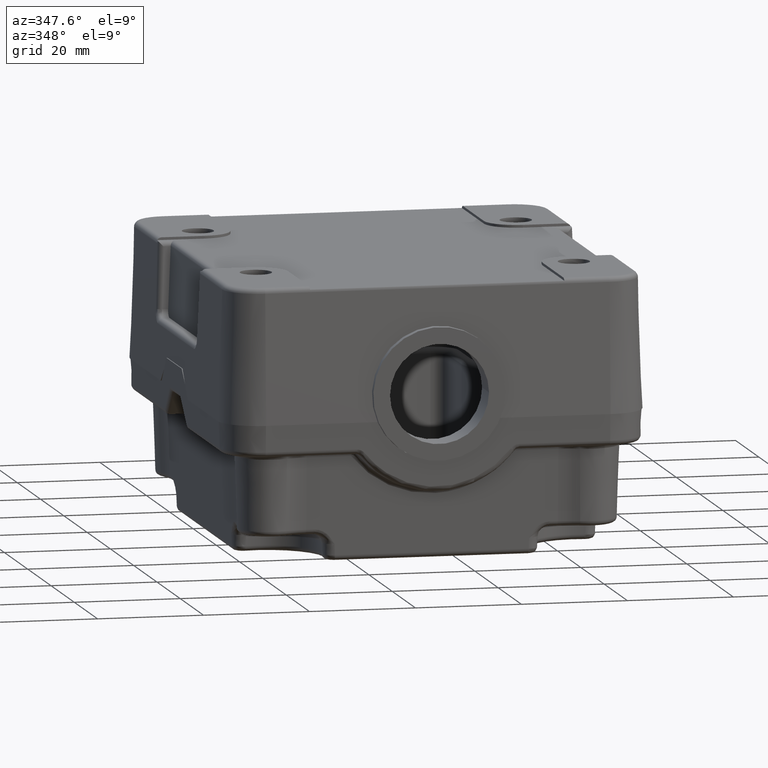
[diagram: clean part render]
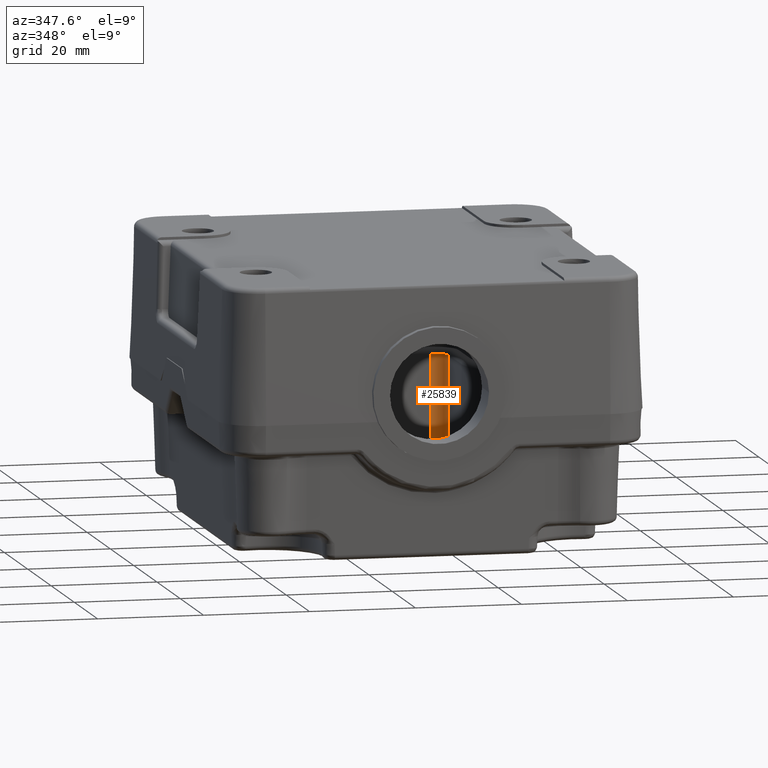
[diagram: same view with one face highlighted and labeled with its STEP entity id]
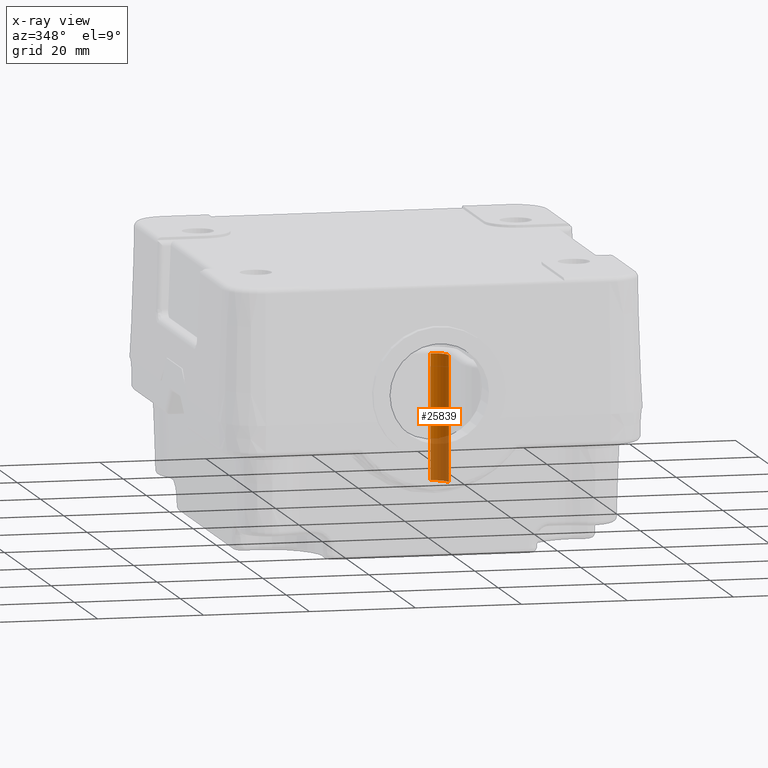
[diagram: x-ray of the same camera — body ghosted, the highlighted face saturated]
A machine part, auxiliary view. The second image highlights one B-rep face of the part: STEP entity #25839.
The next image is the same camera in x-ray: the body ghosted, the highlighted face saturated — about 34% of this face is hidden behind the body in this view.
In plain terms, the highlighted cylindrical surface (edge-blend (fillet) strip) has radius 2.8254 mm, axis along (0, -0, -1).
Its self-contained STEP definition (entity closure, byte-faithful):
#10543=CARTESIAN_POINT('',(47.915582961584384,-67.897833128956663,6.000000000000001));
#10544=VERTEX_POINT('',#10543);
#10602=CARTESIAN_POINT('',(45.090186809043118,-70.723229281498121,6.000000000000002));
#10603=VERTEX_POINT('',#10602);
#10611=CARTESIAN_POINT('',(45.090186809043118,-67.897833128956862,6.000000000000002));
#10612=DIRECTION('',(-6.946338E-017,6.946338E-017,1.0));
#10613=DIRECTION('',(0.707106781186574,-0.707106781186521,9.823605E-017));
#10614=AXIS2_PLACEMENT_3D('',#10611,#10612,#10613);
#10615=CIRCLE('',#10614,2.825396152541266);
#10616=EDGE_CURVE('',#10603,#10544,#10615,.T.);
#12098=CARTESIAN_POINT('',(47.915582961584384,-67.897833128956663,29.700000000000003));
#12099=VERTEX_POINT('',#12098);
#12100=CARTESIAN_POINT('',(47.915582961584384,-67.897833128956663,6.000000000000001));
#12101=DIRECTION('',(0.0,0.0,1.0));
#12102=VECTOR('',#12101,23.700000000000003);
#12103=LINE('',#12100,#12102);
#12104=EDGE_CURVE('',#10544,#12099,#12103,.T.);
#25815=CARTESIAN_POINT('',(45.090186809043118,-67.897833128956862,0.0));
#25816=DIRECTION('',(0.0,0.0,1.0));
#25817=DIRECTION('',(-1.0,0.0,0.0));
#25818=AXIS2_PLACEMENT_3D('',#25815,#25816,#25817);
#25819=CYLINDRICAL_SURFACE('',#25818,2.825396152541266);
#25820=ORIENTED_EDGE('',*,*,#10616,.F.);
#25821=CARTESIAN_POINT('',(45.090186809043118,-70.723229281498121,29.700000000000003));
#25822=VERTEX_POINT('',#25821);
#25823=CARTESIAN_POINT('',(45.090186809043118,-70.723229281498121,6.000000000000002));
#25824=DIRECTION('',(0.0,0.0,1.0));
#25825=VECTOR('',#25824,23.700000000000003);
#25826=LINE('',#25823,#25825);
#25827=EDGE_CURVE('',#10603,#25822,#25826,.T.);
#25828=ORIENTED_EDGE('',*,*,#25827,.T.);
#25829=CARTESIAN_POINT('',(45.090186809043118,-67.897833128956862,29.700000000000003));
#25830=DIRECTION('',(0.0,0.0,-1.0));
#25831=DIRECTION('',(-1.0,0.0,0.0));
#25832=AXIS2_PLACEMENT_3D('',#25829,#25830,#25831);
#25833=CIRCLE('',#25832,2.825396152541266);
#25834=EDGE_CURVE('',#12099,#25822,#25833,.T.);
#25835=ORIENTED_EDGE('',*,*,#25834,.F.);
#25836=ORIENTED_EDGE('',*,*,#12104,.F.);
#25837=EDGE_LOOP('',(#25820,#25828,#25835,#25836));
#25838=FACE_OUTER_BOUND('',#25837,.T.);
#25839=ADVANCED_FACE('',(#25838),#25819,.F.);